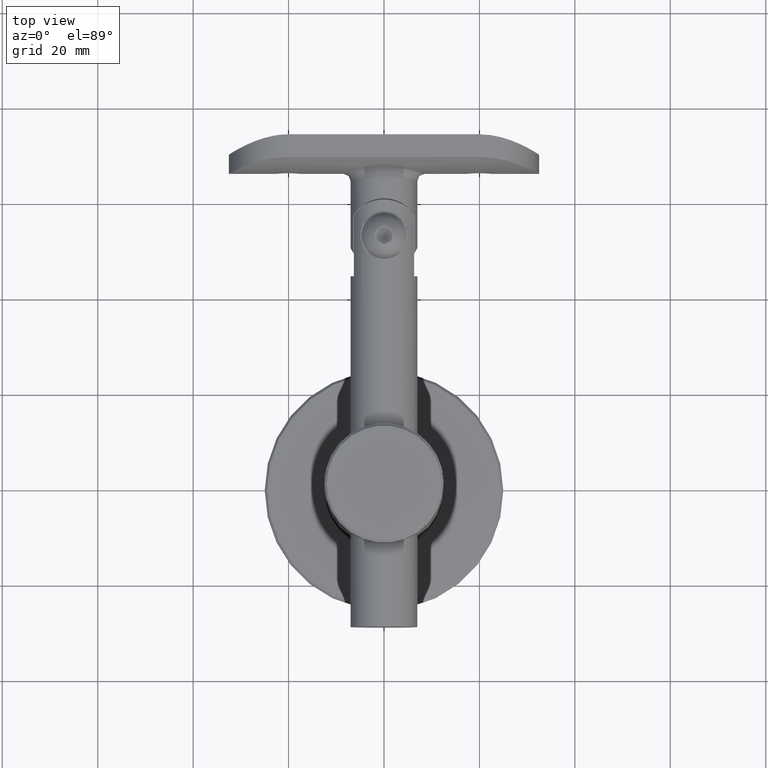
[diagram: clean part render]
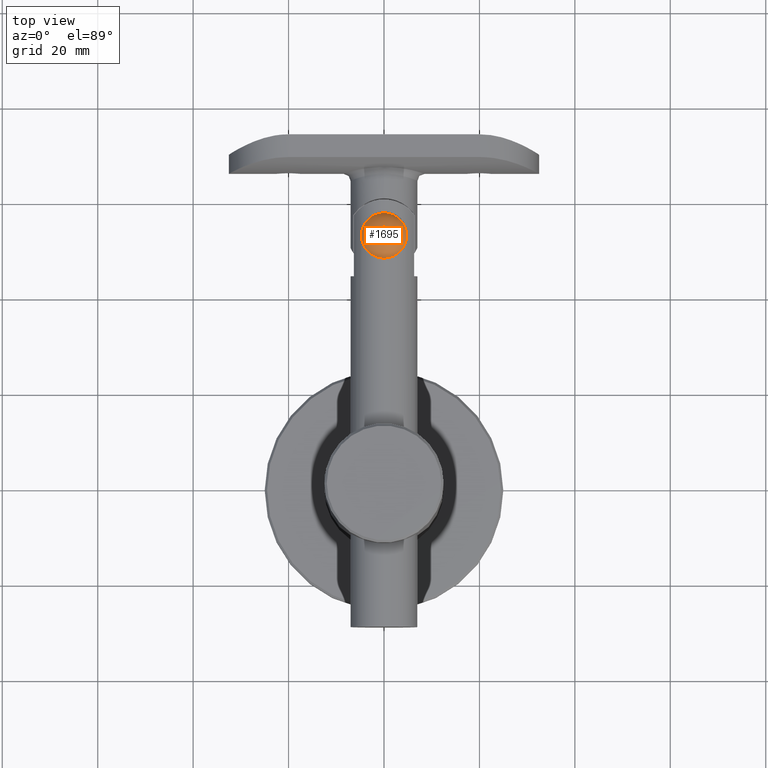
[diagram: same view with one face highlighted and labeled with its STEP entity id]
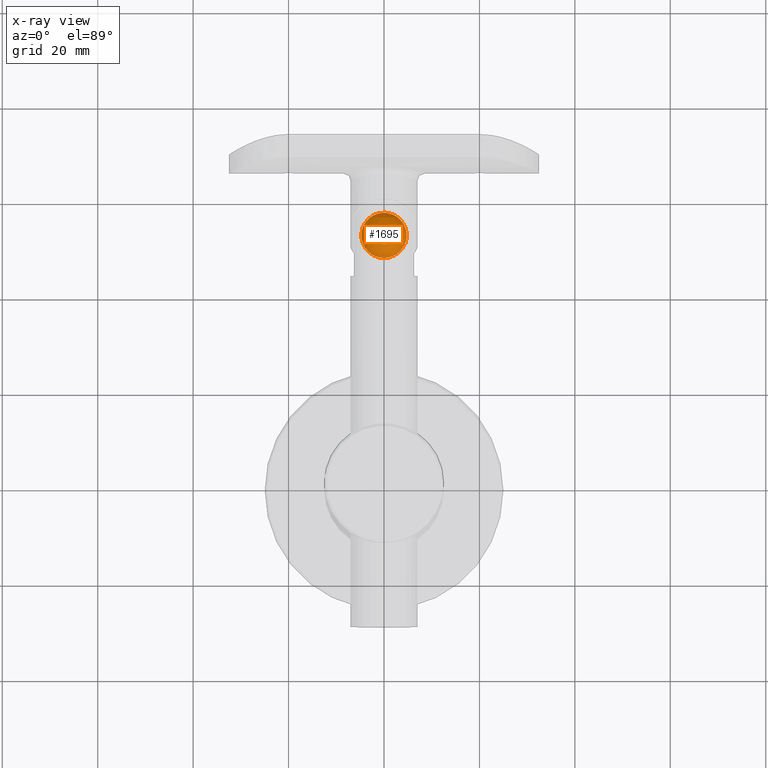
[diagram: x-ray of the same camera — body ghosted, the highlighted face saturated]
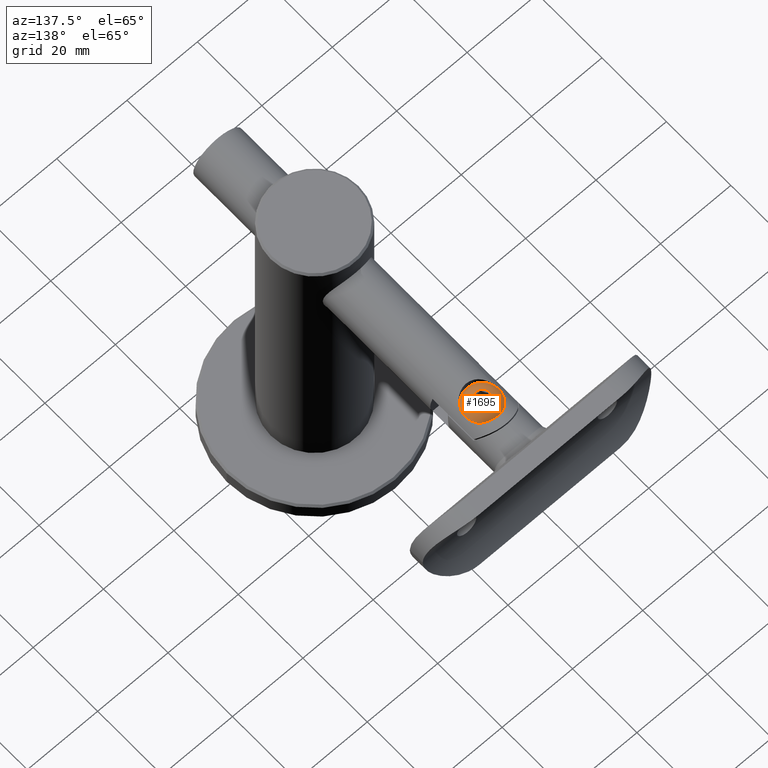
[diagram: same view with one face highlighted and labeled with its STEP entity id]
A machine part, top view. The second image highlights one B-rep face of the part: STEP entity #1695.
The next image is the same camera in x-ray: the body ghosted, the highlighted face saturated — about 0% of this face is hidden behind the body in this view.
A second angle (auxiliary view) of the same face is appended — the face is thin or edge-on in the first view.
In plain terms, the highlighted spherical surface has radius 5.3123 mm.
Its self-contained STEP definition (entity closure, byte-faithful):
#170 = SPHERICAL_SURFACE ( 'NONE', #2356, 5.312326351066129600 ) ;
#497 = CARTESIAN_POINT ( 'NONE',  ( 0.0000000000000000000, 0.0000000000000000000, 0.0000000000000000000 ) ) ;
#568 = DIRECTION ( 'NONE',  ( 0.0000000000000000000, 0.0000000000000000000, -1.000000000000000000 ) ) ;
#903 = FACE_OUTER_BOUND ( 'NONE', #12630, .T. ) ;
#1236 = ORIENTED_EDGE ( 'NONE', *, *, #20755, .T. ) ;
#1695 = ADVANCED_FACE ( 'NONE', ( #903, #11194 ), #170, .T. ) ;
#2231 = DIRECTION ( 'NONE',  ( -0.0000000000000000000, -1.000000000000000000, -0.0000000000000000000 ) ) ;
#2312 = EDGE_LOOP ( 'NONE', ( #19759 ) ) ;
#2356 = AXIS2_PLACEMENT_3D ( 'NONE', #5533, #18382, #8781 ) ;
#2366 = DIRECTION ( 'NONE',  ( 0.0000000000000000000, 0.0000000000000000000, -1.000000000000000000 ) ) ;
#3470 = EDGE_CURVE ( 'NONE', #5403, #5403, #17169, .T. ) ;
#5403 = VERTEX_POINT ( 'NONE', #10574 ) ;
#5490 = CARTESIAN_POINT ( 'NONE',  ( 0.0000000000000000000, 2.550000000000000300, 0.0000000000000000000 ) ) ;
#5533 = CARTESIAN_POINT ( 'NONE',  ( 0.0000000000000000000, 4.928720509061874600, 0.0000000000000000000 ) ) ;
#7365 = AXIS2_PLACEMENT_3D ( 'NONE', #5490, #2231, #2366 ) ;
#8675 = AXIS2_PLACEMENT_3D ( 'NONE', #497, #13387, #568 ) ;
#8781 = DIRECTION ( 'NONE',  ( 1.000000000000000000, 0.0000000000000000000, 0.0000000000000000000 ) ) ;
#9959 = VERTEX_POINT ( 'NONE', #17340 ) ;
#10574 = CARTESIAN_POINT ( 'NONE',  ( 0.0000000000000000000, 0.0000000000000000000, -1.982050807568876300 ) ) ;
#11194 = FACE_OUTER_BOUND ( 'NONE', #2312, .T. ) ;
#12630 = EDGE_LOOP ( 'NONE', ( #1236 ) ) ;
#13387 = DIRECTION ( 'NONE',  ( -0.0000000000000000000, -1.000000000000000000, -0.0000000000000000000 ) ) ;
#17169 = CIRCLE ( 'NONE', #8675, 1.982050807568876300 ) ;
#17340 = CARTESIAN_POINT ( 'NONE',  ( 0.0000000000000000000, 2.550000000000000300, -4.750000000000000000 ) ) ;
#18382 = DIRECTION ( 'NONE',  ( 0.0000000000000000000, 0.0000000000000000000, 1.000000000000000000 ) ) ;
#19236 = CIRCLE ( 'NONE', #7365, 4.750000000000000000 ) ;
#19759 = ORIENTED_EDGE ( 'NONE', *, *, #3470, .F. ) ;
#20755 = EDGE_CURVE ( 'NONE', #9959, #9959, #19236, .T. ) ;